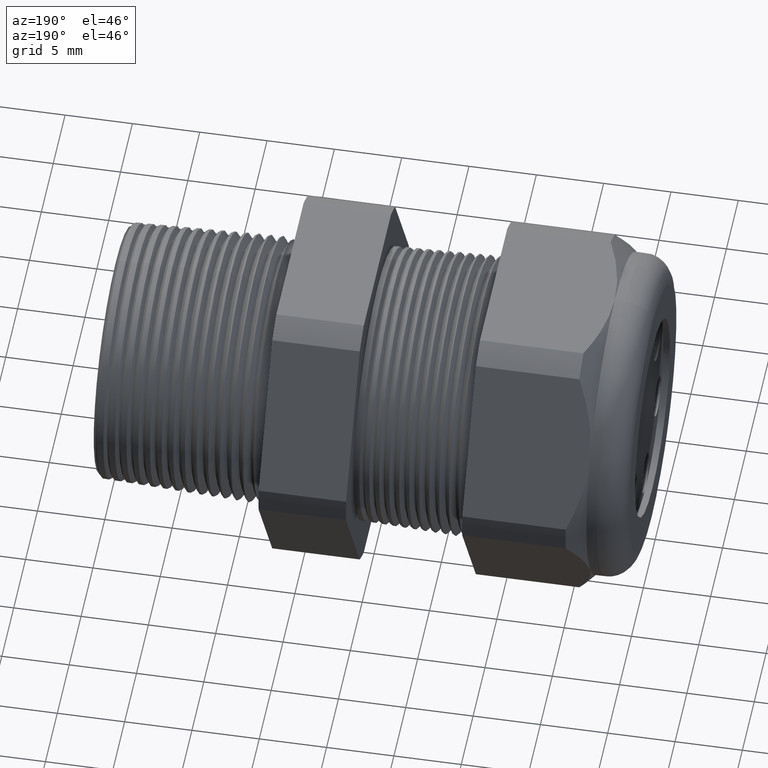
[diagram: clean part render]
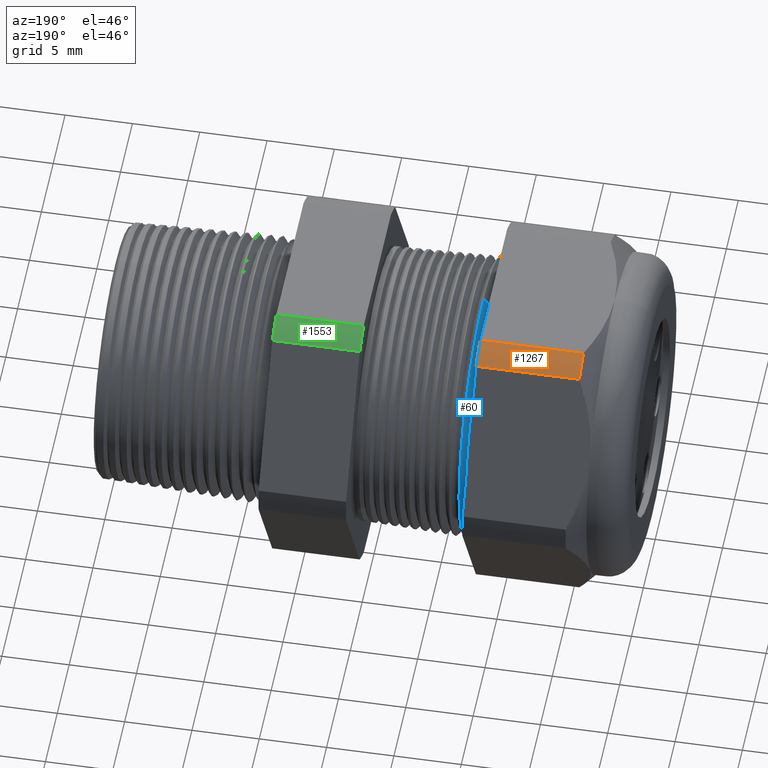
[diagram: same view with three faces highlighted in distinct colors, each labeled with its STEP entity id]
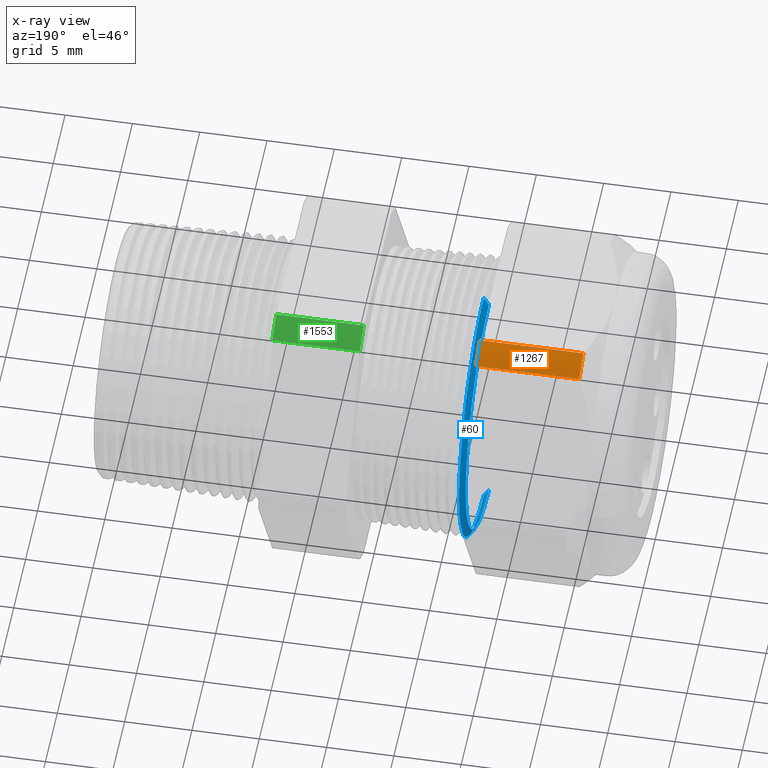
[diagram: x-ray of the same camera — body ghosted, the three highlighted faces saturated]
A machine part, auxiliary view with three faces highlighted in distinct colors.
The next image is the same camera in x-ray (body ghosted, the three faces saturated) — at least one of them is partly hidden behind the body in this view.
Their STEP definitions:

[orange] entity #1267 — the highlighted cylindrical surface (partial cylindrical patch) has radius 13.2512 mm, axis along (-1, 0, 0).
#1249 = EDGE_CURVE ( 'NONE', #1264, #1275, #3691, .T. ) ;
#1263 = EDGE_CURVE ( 'NONE', #1264, #1288, #3742, .T. ) ;
#1264 = VERTEX_POINT ( 'NONE', #3735 ) ;
#1267 = ADVANCED_FACE ( 'NONE', ( #3725 ), #3723, .T. ) ;
#1268 = EDGE_LOOP ( 'NONE', ( #1269, #1270, #1273, #1330 ) ) ;
#1269 = ORIENTED_EDGE ( 'NONE', *, *, #1263, .T. ) ;
#1270 = ORIENTED_EDGE ( 'NONE', *, *, #1271, .T. ) ;
#1271 = EDGE_CURVE ( 'NONE', #1288, #1272, #3820, .T. ) ;
#1272 = VERTEX_POINT ( 'NONE', #3815 ) ;
#1273 = ORIENTED_EDGE ( 'NONE', *, *, #1274, .F. ) ;
#1274 = EDGE_CURVE ( 'NONE', #1275, #1272, #3814, .T. ) ;
#1275 = VERTEX_POINT ( 'NONE', #3810 ) ;
#1288 = VERTEX_POINT ( 'NONE', #3848 ) ;
#1330 = ORIENTED_EDGE ( 'NONE', *, *, #1249, .F. ) ;
#2948 = DIRECTION ( 'NONE',  ( 0.0000000000000000000, 0.0000000000000000000, 1.000000000000000000 ) ) ;
#2949 = DIRECTION ( 'NONE',  ( -1.000000000000000000, 0.0000000000000000000, 0.0000000000000000000 ) ) ;
#2950 = CARTESIAN_POINT ( 'NONE',  ( 0.2000000000000000400, 0.0000000000000000000, 0.0000000000000000000 ) ) ;
#2956 = AXIS2_PLACEMENT_3D ( 'NONE', #2950, #2949, #2948 ) ;
#3685 = DIRECTION ( 'NONE',  ( 0.0000000000000000000, 0.0000000000000000000, -1.000000000000000000 ) ) ;
#3686 = DIRECTION ( 'NONE',  ( 1.000000000000000000, 0.0000000000000000000, 0.0000000000000000000 ) ) ;
#3687 = CARTESIAN_POINT ( 'NONE',  ( -0.9054330708661418900, 0.0000000000000000000, 0.0000000000000000000 ) ) ;
#3689 = AXIS2_PLACEMENT_3D ( 'NONE', #3687, #3686, #3685 ) ;
#3691 = CIRCLE ( 'NONE', #3689, 0.5217000000000000500 ) ;
#3723 = CYLINDRICAL_SURFACE ( 'NONE', #2956, 0.5217000000000000500 ) ;
#3725 = FACE_OUTER_BOUND ( 'NONE', #1268, .T. ) ;
#3735 = CARTESIAN_POINT ( 'NONE',  ( -0.9054330708661418900, 0.2938165587564947600, 0.4310947921287048800 ) ) ;
#3737 = DIRECTION ( 'NONE',  ( -1.000000000000000000, 0.0000000000000000000, 0.0000000000000000000 ) ) ;
#3739 = VECTOR ( 'NONE', #3737, 39.37007874015748100 ) ;
#3741 = CARTESIAN_POINT ( 'NONE',  ( 0.2000000000000000400, 0.2938165587564947600, 0.4310947921287048800 ) ) ;
#3742 = LINE ( 'NONE', #3741, #3739 ) ;
#3810 = CARTESIAN_POINT ( 'NONE',  ( -0.9054330708661418900, 0.2264307620443832800, 0.4699999999999999200 ) ) ;
#3811 = DIRECTION ( 'NONE',  ( -1.000000000000000000, 0.0000000000000000000, 0.0000000000000000000 ) ) ;
#3812 = VECTOR ( 'NONE', #3811, 39.37007874015748100 ) ;
#3813 = CARTESIAN_POINT ( 'NONE',  ( 0.2000000000000000400, 0.2264307620443832800, 0.4699999999999999200 ) ) ;
#3814 = LINE ( 'NONE', #3813, #3812 ) ;
#3815 = CARTESIAN_POINT ( 'NONE',  ( -1.208063779527559500, 0.2264307620443832800, 0.4699999999999999200 ) ) ;
#3816 = DIRECTION ( 'NONE',  ( 0.0000000000000000000, 0.0000000000000000000, -1.000000000000000000 ) ) ;
#3817 = DIRECTION ( 'NONE',  ( 1.000000000000000000, 0.0000000000000000000, 0.0000000000000000000 ) ) ;
#3818 = CARTESIAN_POINT ( 'NONE',  ( -1.208063779527559500, 0.0000000000000000000, 0.0000000000000000000 ) ) ;
#3819 = AXIS2_PLACEMENT_3D ( 'NONE', #3818, #3817, #3816 ) ;
#3820 = CIRCLE ( 'NONE', #3819, 0.5217000000000000500 ) ;
#3848 = CARTESIAN_POINT ( 'NONE',  ( -1.208063779527559500, 0.2938165587564947600, 0.4310947921287048800 ) ) ;

[blue] entity #60 — the highlighted conical surface has half-angle 58 deg.
#19 = EDGE_CURVE ( 'NONE', #116, #27, #2537, .T. ) ;
#20 = VERTEX_POINT ( 'NONE', #2532 ) ;
#23 = EDGE_CURVE ( 'NONE', #24, #27, #2530, .T. ) ;
#24 = VERTEX_POINT ( 'NONE', #2526 ) ;
#26 = ORIENTED_EDGE ( 'NONE', *, *, #19, .F. ) ;
#27 = VERTEX_POINT ( 'NONE', #2521 ) ;
#28 = ORIENTED_EDGE ( 'NONE', *, *, #23, .T. ) ;
#53 = ORIENTED_EDGE ( 'NONE', *, *, #5886, .T. ) ;
#55 = EDGE_LOOP ( 'NONE', ( #53, #28, #26, #117 ) ) ;
#60 = ADVANCED_FACE ( 'NONE', ( #2591 ), #2589, .T. ) ;
#116 = VERTEX_POINT ( 'NONE', #2671 ) ;
#117 = ORIENTED_EDGE ( 'NONE', *, *, #118, .F. ) ;
#118 = EDGE_CURVE ( 'NONE', #20, #116, #2670, .T. ) ;
#804 = DIRECTION ( 'NONE',  ( 0.0000000000000000000, 0.0000000000000000000, -1.000000000000000000 ) ) ;
#805 = DIRECTION ( 'NONE',  ( 1.000000000000000000, 0.0000000000000000000, 0.0000000000000000000 ) ) ;
#806 = CARTESIAN_POINT ( 'NONE',  ( -0.8918805942085761300, 0.0000000000000000000, 0.0000000000000000000 ) ) ;
#807 = AXIS2_PLACEMENT_3D ( 'NONE', #806, #805, #804 ) ;
#808 = CIRCLE ( 'NONE', #807, 0.3845114984791284100 ) ;
#2521 = CARTESIAN_POINT ( 'NONE',  ( -0.8765831427158862200, 0.0000000000000000000, 0.4089925383092116200 ) ) ;
#2526 = CARTESIAN_POINT ( 'NONE',  ( -0.8918805942085761300, 0.0000000000000000000, 0.3845114984791284100 ) ) ;
#2527 = DIRECTION ( 'NONE',  ( 0.5299192642331908000, 1.038559386480984800E-016, 0.8480480961564348400 ) ) ;
#2528 = VECTOR ( 'NONE', #2527, 39.37007874015748100 ) ;
#2529 = CARTESIAN_POINT ( 'NONE',  ( -0.8918805942085761300, 4.708907758478169600E-017, 0.3845114984791284100 ) ) ;
#2530 = LINE ( 'NONE', #2529, #2528 ) ;
#2532 = CARTESIAN_POINT ( 'NONE',  ( -0.8918805942085761300, 4.864979817491159200E-017, -0.3845114984791284100 ) ) ;
#2533 = DIRECTION ( 'NONE',  ( 0.0000000000000000000, 0.0000000000000000000, -1.000000000000000000 ) ) ;
#2534 = DIRECTION ( 'NONE',  ( 1.000000000000000000, 0.0000000000000000000, 0.0000000000000000000 ) ) ;
#2535 = CARTESIAN_POINT ( 'NONE',  ( -0.8765831427158862200, 0.0000000000000000000, 0.0000000000000000000 ) ) ;
#2536 = AXIS2_PLACEMENT_3D ( 'NONE', #2535, #2534, #2533 ) ;
#2537 = CIRCLE ( 'NONE', #2536, 0.4089925383092116200 ) ;
#2586 = DIRECTION ( 'NONE',  ( 0.0000000000000000000, 0.0000000000000000000, -1.000000000000000000 ) ) ;
#2587 = DIRECTION ( 'NONE',  ( 1.000000000000000000, 0.0000000000000000000, 0.0000000000000000000 ) ) ;
#2588 = AXIS2_PLACEMENT_3D ( 'NONE', #2590, #2587, #2586 ) ;
#2589 = CONICAL_SURFACE ( 'NONE', #2588, 0.3845114984791284100, 1.012290966156727900 ) ;
#2590 = CARTESIAN_POINT ( 'NONE',  ( -0.8918805942085761300, 0.0000000000000000000, 0.0000000000000000000 ) ) ;
#2591 = FACE_OUTER_BOUND ( 'NONE', #55, .T. ) ;
#2667 = DIRECTION ( 'NONE',  ( 0.5299192642331908000, 0.0000000000000000000, -0.8480480961564348400 ) ) ;
#2668 = VECTOR ( 'NONE', #2667, 39.37007874015748100 ) ;
#2669 = CARTESIAN_POINT ( 'NONE',  ( -0.8918805942085761300, 0.0000000000000000000, -0.3845114984791284100 ) ) ;
#2670 = LINE ( 'NONE', #2669, #2668 ) ;
#2671 = CARTESIAN_POINT ( 'NONE',  ( -0.8765831427158862200, 5.008714029155272400E-017, -0.4089925383092116200 ) ) ;
#5886 = EDGE_CURVE ( 'NONE', #20, #24, #808, .T. ) ;

[green] entity #1553 — the highlighted cylindrical surface (partial cylindrical patch) has radius 13.2512 mm, axis along (-1, 0, 0).
#1397 = VERTEX_POINT ( 'NONE', #4083 ) ;
#1453 = EDGE_CURVE ( 'NONE', #1397, #1454, #4219, .T. ) ;
#1454 = VERTEX_POINT ( 'NONE', #4211 ) ;
#1534 = ORIENTED_EDGE ( 'NONE', *, *, #1535, .F. ) ;
#1535 = EDGE_CURVE ( 'NONE', #1550, #1613, #4335, .T. ) ;
#1549 = EDGE_CURVE ( 'NONE', #1454, #1550, #4378, .T. ) ;
#1550 = VERTEX_POINT ( 'NONE', #4374 ) ;
#1553 = ADVANCED_FACE ( 'NONE', ( #4369 ), #4368, .T. ) ;
#1608 = EDGE_LOOP ( 'NONE', ( #1609, #1610, #1611, #1534 ) ) ;
#1609 = ORIENTED_EDGE ( 'NONE', *, *, #1549, .F. ) ;
#1610 = ORIENTED_EDGE ( 'NONE', *, *, #1453, .F. ) ;
#1611 = ORIENTED_EDGE ( 'NONE', *, *, #1612, .T. ) ;
#1612 = EDGE_CURVE ( 'NONE', #1397, #1613, #4415, .T. ) ;
#1613 = VERTEX_POINT ( 'NONE', #4478 ) ;
#4083 = CARTESIAN_POINT ( 'NONE',  ( -0.3100000000000000000, 0.2938165587564947600, 0.4310947921287048800 ) ) ;
#4211 = CARTESIAN_POINT ( 'NONE',  ( -0.3100000000000000000, 0.2264307620443832800, 0.4699999999999999200 ) ) ;
#4212 = DIRECTION ( 'NONE',  ( 0.0000000000000000000, 0.0000000000000000000, -1.000000000000000000 ) ) ;
#4213 = DIRECTION ( 'NONE',  ( 1.000000000000000000, 0.0000000000000000000, 0.0000000000000000000 ) ) ;
#4214 = CARTESIAN_POINT ( 'NONE',  ( -0.3100000000000000000, 0.0000000000000000000, 0.0000000000000000000 ) ) ;
#4215 = AXIS2_PLACEMENT_3D ( 'NONE', #4214, #4213, #4212 ) ;
#4219 = CIRCLE ( 'NONE', #4215, 0.5217000000000000500 ) ;
#4331 = DIRECTION ( 'NONE',  ( 0.0000000000000000000, 0.0000000000000000000, 1.000000000000000000 ) ) ;
#4332 = DIRECTION ( 'NONE',  ( -1.000000000000000000, 0.0000000000000000000, 0.0000000000000000000 ) ) ;
#4333 = CARTESIAN_POINT ( 'NONE',  ( -0.5659055118110235500, 0.0000000000000000000, 0.0000000000000000000 ) ) ;
#4334 = AXIS2_PLACEMENT_3D ( 'NONE', #4333, #4332, #4331 ) ;
#4335 = CIRCLE ( 'NONE', #4334, 0.5217000000000000500 ) ;
#4363 = DIRECTION ( 'NONE',  ( 0.0000000000000000000, 0.0000000000000000000, 1.000000000000000000 ) ) ;
#4364 = DIRECTION ( 'NONE',  ( -1.000000000000000000, 0.0000000000000000000, 0.0000000000000000000 ) ) ;
#4365 = CARTESIAN_POINT ( 'NONE',  ( 0.2000000000000000400, 0.0000000000000000000, 0.0000000000000000000 ) ) ;
#4366 = AXIS2_PLACEMENT_3D ( 'NONE', #4365, #4364, #4363 ) ;
#4368 = CYLINDRICAL_SURFACE ( 'NONE', #4366, 0.5217000000000000500 ) ;
#4369 = FACE_OUTER_BOUND ( 'NONE', #1608, .T. ) ;
#4374 = CARTESIAN_POINT ( 'NONE',  ( -0.5659055118110235500, 0.2264307620443832800, 0.4699999999999999200 ) ) ;
#4375 = DIRECTION ( 'NONE',  ( -1.000000000000000000, 0.0000000000000000000, 0.0000000000000000000 ) ) ;
#4376 = VECTOR ( 'NONE', #4375, 39.37007874015748100 ) ;
#4377 = CARTESIAN_POINT ( 'NONE',  ( 0.2000000000000000400, 0.2264307620443832800, 0.4699999999999999200 ) ) ;
#4378 = LINE ( 'NONE', #4377, #4376 ) ;
#4415 = LINE ( 'NONE', #4421, #4480 ) ;
#4421 = CARTESIAN_POINT ( 'NONE',  ( 0.2000000000000000400, 0.2938165587564947600, 0.4310947921287048800 ) ) ;
#4478 = CARTESIAN_POINT ( 'NONE',  ( -0.5659055118110235500, 0.2938165587564947600, 0.4310947921287048800 ) ) ;
#4479 = DIRECTION ( 'NONE',  ( -1.000000000000000000, 0.0000000000000000000, 0.0000000000000000000 ) ) ;
#4480 = VECTOR ( 'NONE', #4479, 39.37007874015748100 ) ;